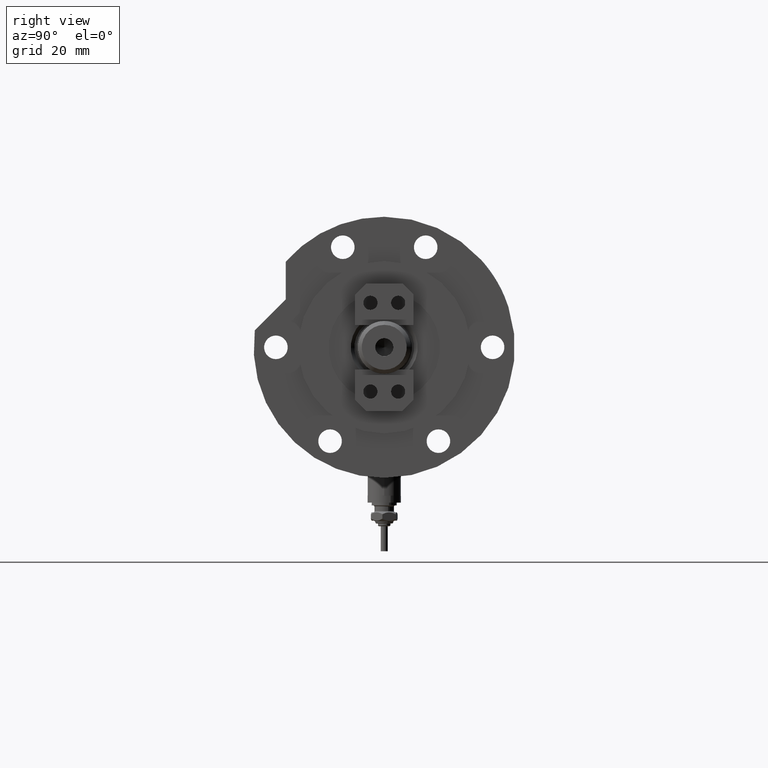
[diagram: clean part render]
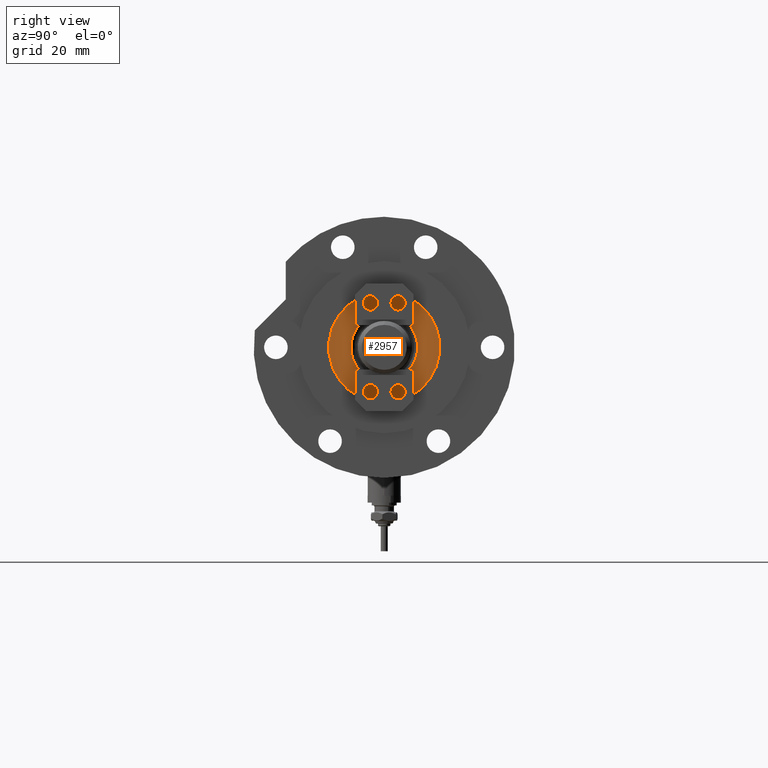
[diagram: same view with one face highlighted and labeled with its STEP entity id]
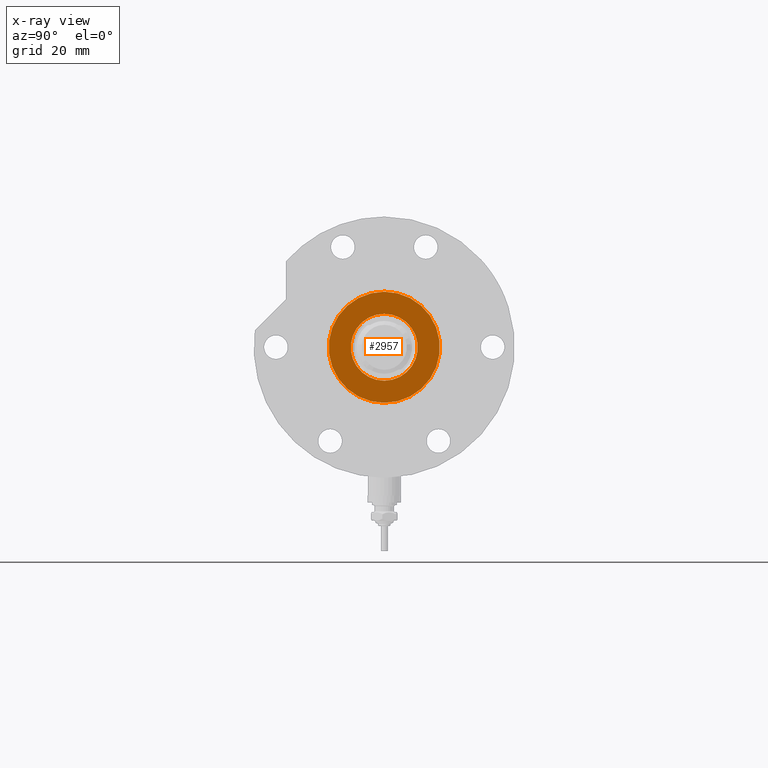
[diagram: x-ray of the same camera — body ghosted, the highlighted face saturated]
A machine part, right view. The second image highlights one B-rep face of the part: STEP entity #2957.
The next image is the same camera in x-ray: the body ghosted, the highlighted face saturated — about 0% of this face is hidden behind the body in this view.
In plain terms, the highlighted planar face has unit normal (1, 0, -0).
Its self-contained STEP definition (entity closure, byte-faithful):
#130 = ORIENTED_EDGE ( 'NONE', *, *, #723, .T. ) ;
#395 = VERTEX_POINT ( 'NONE', #1145 ) ;
#575 = ORIENTED_EDGE ( 'NONE', *, *, #1859, .T. ) ;
#723 = EDGE_CURVE ( 'NONE', #395, #741, #5461, .T. ) ;
#741 = VERTEX_POINT ( 'NONE', #7856 ) ;
#799 = EDGE_LOOP ( 'NONE', ( #130, #6753 ) ) ;
#910 = CARTESIAN_POINT ( 'NONE',  ( 12.05000000000000426, 0.000000000000000000, 33.50000000000000000 ) ) ;
#942 = EDGE_CURVE ( 'NONE', #741, #395, #2211, .T. ) ;
#987 = AXIS2_PLACEMENT_3D ( 'NONE', #3232, #7285, #5283 ) ;
#1038 = DIRECTION ( 'NONE',  ( 0.000000000000000000, 0.000000000000000000, 1.000000000000000000 ) ) ;
#1077 = DIRECTION ( 'NONE',  ( 0.000000000000000000, 0.000000000000000000, 1.000000000000000000 ) ) ;
#1145 = CARTESIAN_POINT ( 'NONE',  ( -19.99999999999999645, 0.000000000000000000, 33.50000000000000000 ) ) ;
#1179 = DIRECTION ( 'NONE',  ( 1.000000000000000000, 0.000000000000000000, 0.000000000000000000 ) ) ;
#1310 = DIRECTION ( 'NONE',  ( -0.000000000000000000, -0.000000000000000000, -1.000000000000000000 ) ) ;
#1418 = EDGE_CURVE ( 'NONE', #6252, #2043, #6891, .T. ) ;
#1679 = AXIS2_PLACEMENT_3D ( 'NONE', #5078, #1077, #2578 ) ;
#1859 = EDGE_CURVE ( 'NONE', #2043, #6252, #6899, .T. ) ;
#2043 = VERTEX_POINT ( 'NONE', #910 ) ;
#2133 = AXIS2_PLACEMENT_3D ( 'NONE', #6465, #7657, #3047 ) ;
#2211 = CIRCLE ( 'NONE', #6042, 19.99999999999999645 ) ;
#2578 = DIRECTION ( 'NONE',  ( 1.000000000000000000, 0.000000000000000000, 0.000000000000000000 ) ) ;
#2723 = ORIENTED_EDGE ( 'NONE', *, *, #1418, .T. ) ;
#2957 = ADVANCED_FACE ( 'NONE', ( #8350, #5025 ), #3705, .T. ) ;
#3047 = DIRECTION ( 'NONE',  ( 1.000000000000000000, 0.000000000000000000, -0.000000000000000000 ) ) ;
#3232 = CARTESIAN_POINT ( 'NONE',  ( 0.000000000000000000, 0.000000000000000000, 33.50000000000000000 ) ) ;
#3705 = PLANE ( 'NONE',  #2133 ) ;
#4093 = AXIS2_PLACEMENT_3D ( 'NONE', #6681, #1310, #1179 ) ;
#4270 = EDGE_LOOP ( 'NONE', ( #575, #2723 ) ) ;
#4443 = CARTESIAN_POINT ( 'NONE',  ( 0.000000000000000000, 0.000000000000000000, 33.50000000000000000 ) ) ;
#5025 = FACE_OUTER_BOUND ( 'NONE', #799, .T. ) ;
#5078 = CARTESIAN_POINT ( 'NONE',  ( 0.000000000000000000, 0.000000000000000000, 33.50000000000000000 ) ) ;
#5283 = DIRECTION ( 'NONE',  ( 1.000000000000000000, 0.000000000000000000, 0.000000000000000000 ) ) ;
#5461 = CIRCLE ( 'NONE', #1679, 19.99999999999999645 ) ;
#6042 = AXIS2_PLACEMENT_3D ( 'NONE', #4443, #1038, #6363 ) ;
#6252 = VERTEX_POINT ( 'NONE', #8048 ) ;
#6363 = DIRECTION ( 'NONE',  ( 1.000000000000000000, 0.000000000000000000, 0.000000000000000000 ) ) ;
#6465 = CARTESIAN_POINT ( 'NONE',  ( 0.000000000000000000, 0.000000000000000000, 33.50000000000000000 ) ) ;
#6681 = CARTESIAN_POINT ( 'NONE',  ( 0.000000000000000000, 0.000000000000000000, 33.50000000000000000 ) ) ;
#6753 = ORIENTED_EDGE ( 'NONE', *, *, #942, .T. ) ;
#6891 = CIRCLE ( 'NONE', #987, 12.05000000000000426 ) ;
#6899 = CIRCLE ( 'NONE', #4093, 12.05000000000000426 ) ;
#7285 = DIRECTION ( 'NONE',  ( -0.000000000000000000, -0.000000000000000000, -1.000000000000000000 ) ) ;
#7657 = DIRECTION ( 'NONE',  ( 0.000000000000000000, 0.000000000000000000, 1.000000000000000000 ) ) ;
#7856 = CARTESIAN_POINT ( 'NONE',  ( 19.99999999999999645, 2.449293598294706119E-15, 33.50000000000000000 ) ) ;
#8048 = CARTESIAN_POINT ( 'NONE',  ( -12.05000000000000426, 1.475699392972560823E-15, 33.50000000000000000 ) ) ;
#8350 = FACE_BOUND ( 'NONE', #4270, .T. ) ;